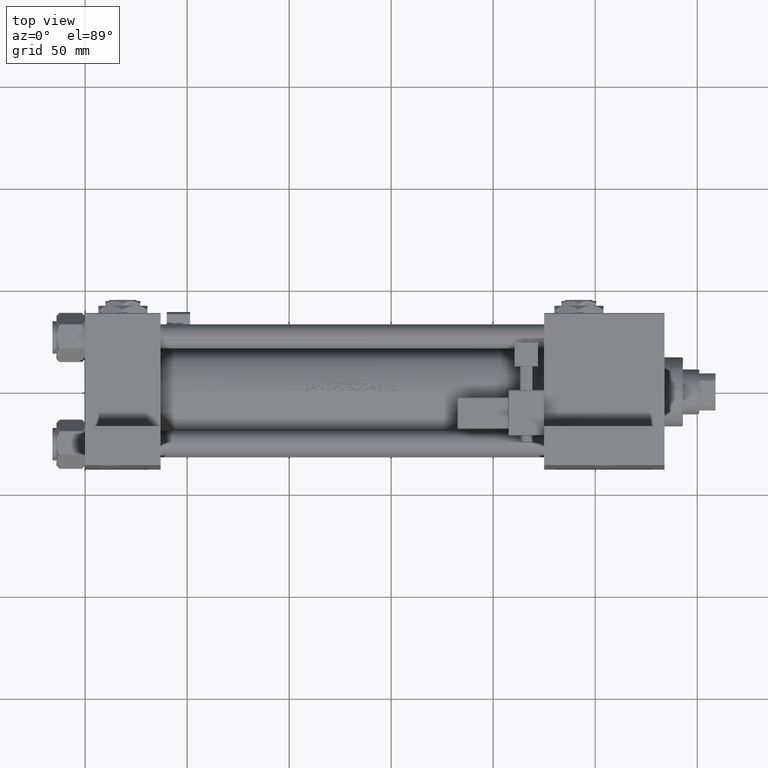
[diagram: clean part render]
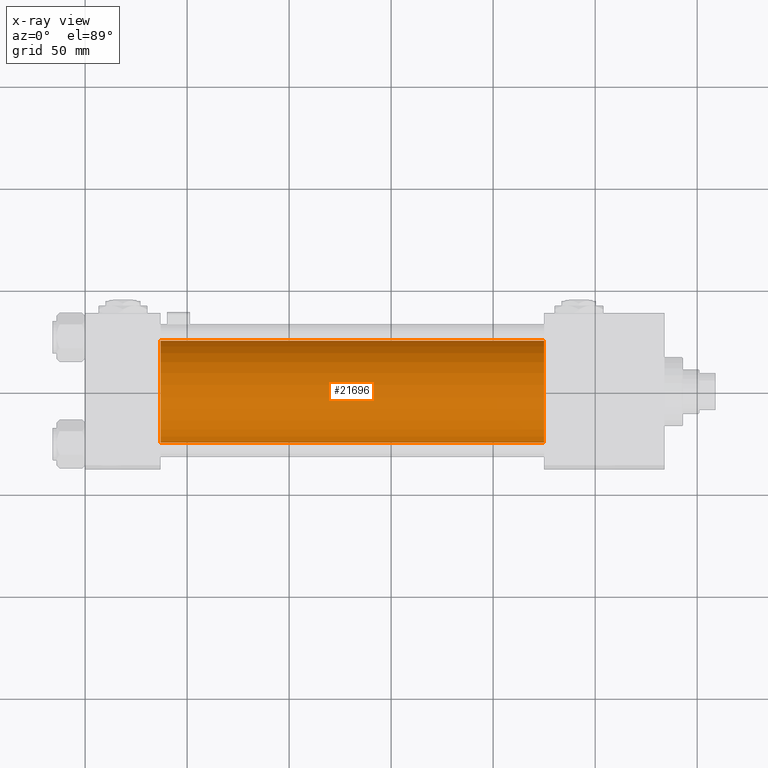
[diagram: x-ray — body ghosted, one internal face saturated and labeled with its STEP entity id]
A machine part, top view, then the same camera in x-ray: the body is ghosted and one INTERNAL B-rep face — a face not visible from any outside direction — is saturated and labeled: STEP entity #21696.
In plain terms, the highlighted cylindrical surface (partial cylindrical patch) has radius 25 mm, axis along (-1, -0, 0).
Its self-contained STEP definition (entity closure, byte-faithful):
#1883 = CARTESIAN_POINT ( 'NONE',  ( 225.0000000000000000, 3.061616997868383043E-15, -25.50000000000000355 ) ) ;
#1976 = VECTOR ( 'NONE', #38337, 1000.000000000000000 ) ;
#3089 = CARTESIAN_POINT ( 'NONE',  ( 225.0000000000000000, 0.000000000000000000, 24.50000000000000000 ) ) ;
#5568 = VERTEX_POINT ( 'NONE', #23255 ) ;
#10352 = DIRECTION ( 'NONE',  ( 0.000000000000000000, 0.000000000000000000, -1.000000000000000000 ) ) ;
#10791 = VERTEX_POINT ( 'NONE', #30939 ) ;
#11289 = ORIENTED_EDGE ( 'NONE', *, *, #50822, .T. ) ;
#12819 = CARTESIAN_POINT ( 'NONE',  ( 225.0000000000000000, 3.061616997868383043E-15, -25.50000000000000355 ) ) ;
#12846 = EDGE_LOOP ( 'NONE', ( #11289, #33262, #26473, #36589 ) ) ;
#13515 = DIRECTION ( 'NONE',  ( -1.000000000000000000, -0.000000000000000000, -0.000000000000000000 ) ) ;
#14009 = FACE_OUTER_BOUND ( 'NONE', #12846, .T. ) ;
#16714 = LINE ( 'NONE', #12819, #18339 ) ;
#18339 = VECTOR ( 'NONE', #21106, 1000.000000000000000 ) ;
#19836 = AXIS2_PLACEMENT_3D ( 'NONE', #42153, #41413, #45790 ) ;
#21106 = DIRECTION ( 'NONE',  ( -1.000000000000000000, -0.000000000000000000, -0.000000000000000000 ) ) ;
#21696 = ADVANCED_FACE ( 'NONE', ( #14009 ), #41748, .F. ) ;
#22277 = CIRCLE ( 'NONE', #19836, 25.00000000000000000 ) ;
#22510 = DIRECTION ( 'NONE',  ( 1.000000000000000000, 0.000000000000000000, 0.000000000000000000 ) ) ;
#23255 = CARTESIAN_POINT ( 'NONE',  ( 37.00000000000000000, 3.061616997868383043E-15, -25.50000000000000355 ) ) ;
#23443 = EDGE_CURVE ( 'NONE', #47665, #5568, #16714, .T. ) ;
#26372 = CARTESIAN_POINT ( 'NONE',  ( 37.00000000000000000, 0.000000000000000000, 24.50000000000000000 ) ) ;
#26473 = ORIENTED_EDGE ( 'NONE', *, *, #42909, .F. ) ;
#29058 = DIRECTION ( 'NONE',  ( 0.000000000000000000, 0.000000000000000000, 1.000000000000000000 ) ) ;
#30939 = CARTESIAN_POINT ( 'NONE',  ( 225.0000000000000000, 0.000000000000000000, 24.50000000000000000 ) ) ;
#31788 = VERTEX_POINT ( 'NONE', #26372 ) ;
#32164 = EDGE_CURVE ( 'NONE', #10791, #31788, #38841, .T. ) ;
#32343 = AXIS2_PLACEMENT_3D ( 'NONE', #40728, #13515, #29058 ) ;
#32602 = CIRCLE ( 'NONE', #36755, 25.00000000000000000 ) ;
#33262 = ORIENTED_EDGE ( 'NONE', *, *, #23443, .T. ) ;
#36589 = ORIENTED_EDGE ( 'NONE', *, *, #32164, .F. ) ;
#36755 = AXIS2_PLACEMENT_3D ( 'NONE', #46338, #22510, #10352 ) ;
#38337 = DIRECTION ( 'NONE',  ( -1.000000000000000000, -0.000000000000000000, -0.000000000000000000 ) ) ;
#38841 = LINE ( 'NONE', #3089, #1976 ) ;
#40728 = CARTESIAN_POINT ( 'NONE',  ( 225.0000000000000000, 0.000000000000000000, -0.5000000000000004441 ) ) ;
#41413 = DIRECTION ( 'NONE',  ( 1.000000000000000000, 0.000000000000000000, 0.000000000000000000 ) ) ;
#41748 = CYLINDRICAL_SURFACE ( 'NONE', #32343, 25.00000000000000000 ) ;
#42153 = CARTESIAN_POINT ( 'NONE',  ( 37.00000000000000000, 0.000000000000000000, -0.5000000000000004441 ) ) ;
#42909 = EDGE_CURVE ( 'NONE', #31788, #5568, #22277, .T. ) ;
#45790 = DIRECTION ( 'NONE',  ( 0.000000000000000000, 0.000000000000000000, -1.000000000000000000 ) ) ;
#46338 = CARTESIAN_POINT ( 'NONE',  ( 225.0000000000000000, 0.000000000000000000, -0.5000000000000004441 ) ) ;
#47665 = VERTEX_POINT ( 'NONE', #1883 ) ;
#50822 = EDGE_CURVE ( 'NONE', #10791, #47665, #32602, .T. ) ;